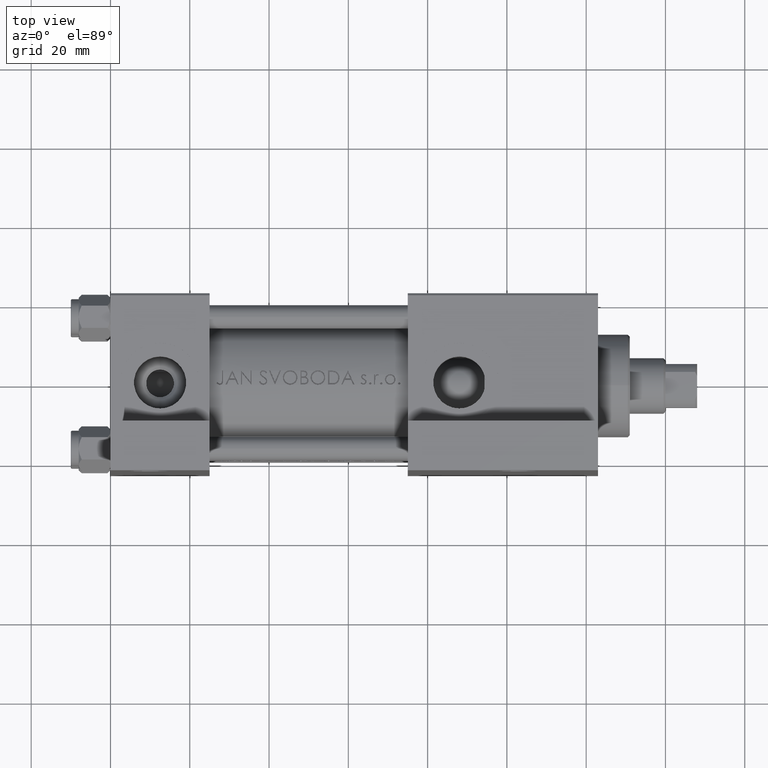
[diagram: clean part render]
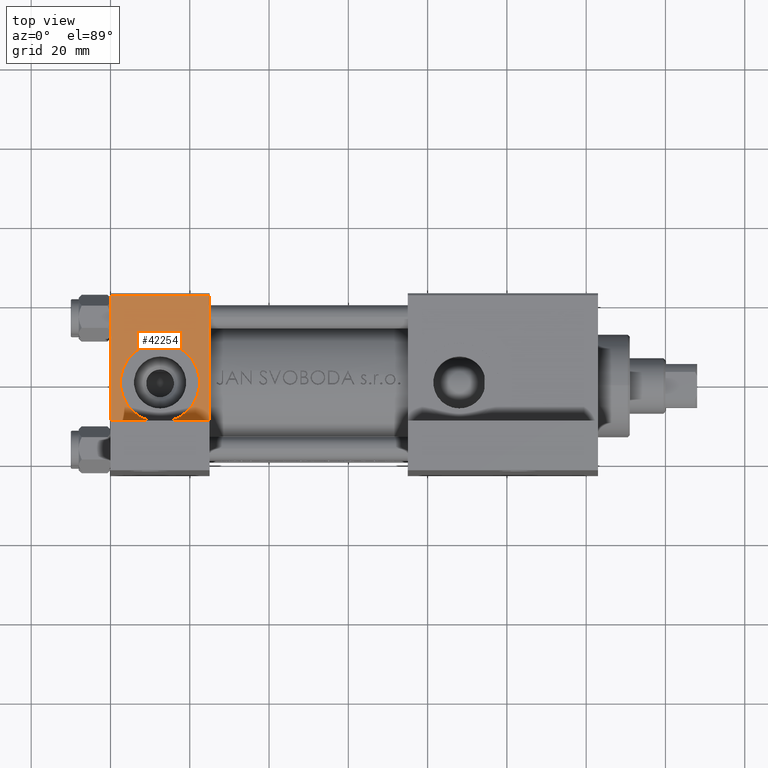
[diagram: same view with one face highlighted and labeled with its STEP entity id]
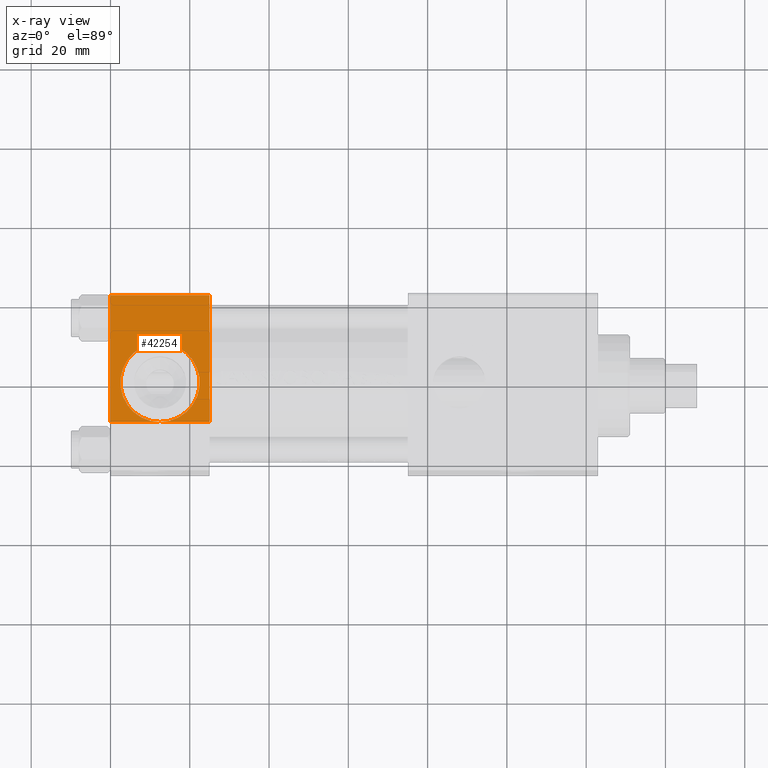
[diagram: x-ray of the same camera — body ghosted, the highlighted face saturated]
A machine part, top view. The second image highlights one B-rep face of the part: STEP entity #42254.
The next image is the same camera in x-ray: the body ghosted, the highlighted face saturated — about 0% of this face is hidden behind the body in this view.
In plain terms, the highlighted planar face has unit normal (0, 0, -1).
Its self-contained STEP definition (entity closure, byte-faithful):
#198 = CARTESIAN_POINT ( 'NONE',  ( 12.50000000000000178, -22.50000000000000000, 9.999999999999996447 ) ) ;
#772 = VECTOR ( 'NONE', #36123, 1000.000000000000000 ) ;
#912 = DIRECTION ( 'NONE',  ( -1.000000000000000000, 1.387778780781445922E-16, 0.000000000000000000 ) ) ;
#1191 = VERTEX_POINT ( 'NONE', #2799 ) ;
#2210 = VERTEX_POINT ( 'NONE', #20096 ) ;
#2317 = EDGE_CURVE ( 'NONE', #1191, #45867, #41789, .T. ) ;
#2737 = PLANE ( 'NONE',  #5713 ) ;
#2799 = CARTESIAN_POINT ( 'NONE',  ( 12.50000000000000000, -22.50000000000000000, -9.999999999999998224 ) ) ;
#3213 = DIRECTION ( 'NONE',  ( 0.000000000000000000, -0.000000000000000000, 1.000000000000000000 ) ) ;
#4009 = CARTESIAN_POINT ( 'NONE',  ( -6.404881882659739909E-17, -22.49999999999999645, -9.999999999999994671 ) ) ;
#4107 = CARTESIAN_POINT ( 'NONE',  ( -6.404881882659816330E-17, -22.50000000000000355, -9.999999999999998224 ) ) ;
#4908 = AXIS2_PLACEMENT_3D ( 'NONE', #22397, #37298, #11545 ) ;
#5611 = VERTEX_POINT ( 'NONE', #18227 ) ;
#5713 = AXIS2_PLACEMENT_3D ( 'NONE', #14284, #6836, #3213 ) ;
#6809 = CARTESIAN_POINT ( 'NONE',  ( 25.00000000000000000, -22.50000000000000000, 22.00000000000000000 ) ) ;
#6836 = DIRECTION ( 'NONE',  ( -0.000000000000000000, 1.000000000000000000, 0.000000000000000000 ) ) ;
#6857 = ORIENTED_EDGE ( 'NONE', *, *, #40568, .F. ) ;
#7178 = CIRCLE ( 'NONE', #13336, 9.999999999999996447 ) ;
#7238 = ORIENTED_EDGE ( 'NONE', *, *, #31318, .T. ) ;
#7931 = EDGE_CURVE ( 'NONE', #1191, #10091, #38227, .T. ) ;
#9459 = VECTOR ( 'NONE', #10606, 1000.000000000000000 ) ;
#10091 = VERTEX_POINT ( 'NONE', #4009 ) ;
#10606 = DIRECTION ( 'NONE',  ( 0.000000000000000000, 0.000000000000000000, -1.000000000000000000 ) ) ;
#11545 = DIRECTION ( 'NONE',  ( 0.000000000000000000, 0.000000000000000000, -1.000000000000000000 ) ) ;
#13336 = AXIS2_PLACEMENT_3D ( 'NONE', #23737, #24838, #42003 ) ;
#13602 = VECTOR ( 'NONE', #43598, 1000.000000000000000 ) ;
#14011 = LINE ( 'NONE', #6809, #13602 ) ;
#14284 = CARTESIAN_POINT ( 'NONE',  ( 25.00000000000000000, -22.50000000000000000, 22.50000000000000000 ) ) ;
#14387 = EDGE_CURVE ( 'NONE', #5611, #2210, #14011, .T. ) ;
#18227 = CARTESIAN_POINT ( 'NONE',  ( 25.00000000000000000, -22.50000000000000000, 22.00000000000000000 ) ) ;
#20096 = CARTESIAN_POINT ( 'NONE',  ( 0.000000000000000000, -22.50000000000000000, 22.00000000000000000 ) ) ;
#20323 = VECTOR ( 'NONE', #912, 1000.000000000000000 ) ;
#21075 = ORIENTED_EDGE ( 'NONE', *, *, #27753, .F. ) ;
#21272 = LINE ( 'NONE', #24409, #23932 ) ;
#22397 = CARTESIAN_POINT ( 'NONE',  ( 12.50000000000000000, -22.50000000000000000, 0.000000000000000000 ) ) ;
#23737 = CARTESIAN_POINT ( 'NONE',  ( 12.50000000000000000, -22.50000000000000000, 0.000000000000000000 ) ) ;
#23932 = VECTOR ( 'NONE', #28471, 1000.000000000000000 ) ;
#24117 = CARTESIAN_POINT ( 'NONE',  ( 25.00000000000000000, -22.50000000000000000, -9.999999999999980460 ) ) ;
#24409 = CARTESIAN_POINT ( 'NONE',  ( 0.000000000000000000, -22.50000000000000000, 22.50000000000000000 ) ) ;
#24838 = DIRECTION ( 'NONE',  ( 0.000000000000000000, -1.000000000000000000, -8.673617379884036705E-17 ) ) ;
#25763 = ORIENTED_EDGE ( 'NONE', *, *, #7931, .F. ) ;
#26575 = EDGE_LOOP ( 'NONE', ( #21075, #43182, #32046, #7238, #25763, #6857, #42604 ) ) ;
#27753 = EDGE_CURVE ( 'NONE', #31664, #1191, #44030, .T. ) ;
#28471 = DIRECTION ( 'NONE',  ( 0.000000000000000000, 0.000000000000000000, -1.000000000000000000 ) ) ;
#31318 = EDGE_CURVE ( 'NONE', #2210, #10091, #21272, .T. ) ;
#31664 = VERTEX_POINT ( 'NONE', #24117 ) ;
#32023 = CARTESIAN_POINT ( 'NONE',  ( 25.00000000000000000, -22.50000000000000000, 22.50000000000000000 ) ) ;
#32046 = ORIENTED_EDGE ( 'NONE', *, *, #14387, .T. ) ;
#34135 = CARTESIAN_POINT ( 'NONE',  ( -6.404881882659816330E-17, -22.50000000000000355, -9.999999999999998224 ) ) ;
#35713 = FACE_OUTER_BOUND ( 'NONE', #26575, .T. ) ;
#36117 = LINE ( 'NONE', #32023, #9459 ) ;
#36123 = DIRECTION ( 'NONE',  ( -1.000000000000000000, 1.387778780781445922E-16, 0.000000000000000000 ) ) ;
#37298 = DIRECTION ( 'NONE',  ( 0.000000000000000000, -1.000000000000000000, -8.673617379884036705E-17 ) ) ;
#38227 = LINE ( 'NONE', #34135, #20323 ) ;
#39103 = EDGE_CURVE ( 'NONE', #5611, #31664, #36117, .T. ) ;
#40568 = EDGE_CURVE ( 'NONE', #45867, #1191, #7178, .T. ) ;
#41789 = CIRCLE ( 'NONE', #4908, 9.999999999999996447 ) ;
#42003 = DIRECTION ( 'NONE',  ( 0.000000000000000000, 0.000000000000000000, -1.000000000000000000 ) ) ;
#42254 = ADVANCED_FACE ( 'NONE', ( #35713 ), #2737, .F. ) ;
#42604 = ORIENTED_EDGE ( 'NONE', *, *, #2317, .F. ) ;
#43182 = ORIENTED_EDGE ( 'NONE', *, *, #39103, .F. ) ;
#43598 = DIRECTION ( 'NONE',  ( -1.000000000000000000, 0.000000000000000000, 0.000000000000000000 ) ) ;
#44030 = LINE ( 'NONE', #4107, #772 ) ;
#45867 = VERTEX_POINT ( 'NONE', #198 ) ;